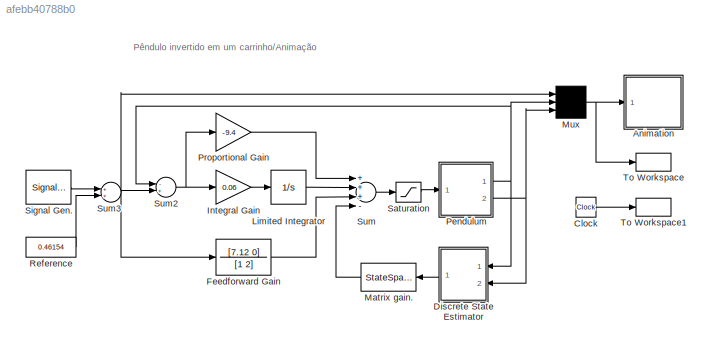
MODEL slx_afebb40788b0
KIND model
CONFIG AbsTol = 1e-6
CONFIG FixedStep = auto
CONFIG MaxStep = 0.02
CONFIG MinStep = auto
CONFIG RelTol = 1e-3
CONFIG SampleTimeConstraint = Unconstrained
CONFIG Solver = ode45
CONFIG SolverMode = SingleTasking
CONFIG SolverName = ode45
CONFIG StartTime = 0
CONFIG StopTime = inf
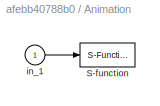
BLOCK [SubSystem] Animation
  Ports = [1]
  RequestExecContextInheritance = off
  Variant = off
BLOCK [S-Function] Animation/S-function
  DeleteFcn = pendan([],[],[],'DeleteBlock');
  EnableBusSupport = off
  FunctionName = pendan
  Parameters = RefBlock
  Ports = [1]
  SFunctionDeploymentMode = off
BLOCK [Inport] Animation/in_1
  IconDisplay = Port number
BLOCK [Clock] Clock
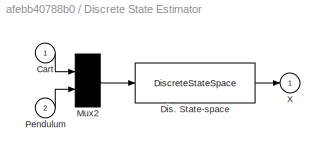
BLOCK [SubSystem] Discrete State Estimator
  Ports = [2, 1]
  RequestExecContextInheritance = off
  Variant = off
BLOCK [Inport] Discrete State Estimator/Cart
  IconDisplay = Port number
BLOCK [DiscreteStateSpace] Discrete State Estimator/Dis. State-space
  A = zeros(2)
  B = -eye(2)/Ts
  C = [0 0; 1 0; 0 0; 0 1]
  D = [1 0; 1/Ts 0; 0 1; 0 1/Ts]
  SampleTime = Ts
BLOCK [Mux] Discrete State Estimator/Mux2
  Inputs = 2
  Ports = [2, 1]
BLOCK [Inport] Discrete State Estimator/Pendulum
  IconDisplay = Port number
  Port = 2
BLOCK [Outport] Discrete State Estimator/X
  IconDisplay = Port number
  InitialOutput = 0
BLOCK [TransferFcn] Feedforward Gain
  Denominator = [1 2]
  Numerator = [7.12 0]
BLOCK [Gain] Integral Gain
  Gain = 0.06
BLOCK [Integrator] Limited Integrator
  LimitOutput = on
  LowerSaturationLimit = -5
  Ports = [1, 1]
  UpperSaturationLimit = 5
BLOCK [StateSpace] Matrix gain.
  A = []
  B = []
  C = []
  D = K
  Ports = [1, 1]
  X0 = 0
BLOCK [Mux] Mux
  Inputs = 3
  Ports = [3, 1]
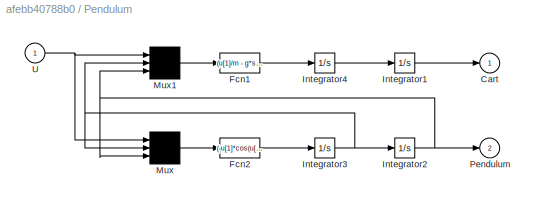
BLOCK [SubSystem] Pendulum
  Ports = [1, 2]
  RequestExecContextInheritance = off
  Variant = off
BLOCK [Outport] Pendulum/Cart
  IconDisplay = Port number
  InitialOutput = 0
BLOCK [Fcn] Pendulum/Fcn1
  Expr = (u[1]/m - g*sin(u[3])*cos(u[3]) + l*power(u[2],2)*sin(u[3]))/(Mcart/m + power(sin(u[3]),2))
BLOCK [Fcn] Pendulum/Fcn2
  Expr = (-u[1]*cos(u[3])/m + (Mcart+m)*g*sin(u[3])/m - l*power(u[2],2)*sin(u[3])*cos(u[3]))/(l*(Mcart/m + power(sin(u[3]),2)))
BLOCK [Integrator] Pendulum/Integrator1
  Ports = [1, 1]
BLOCK [Integrator] Pendulum/Integrator2
  Ports = [1, 1]
BLOCK [Integrator] Pendulum/Integrator3
  Ports = [1, 1]
BLOCK [Integrator] Pendulum/Integrator4
  Ports = [1, 1]
BLOCK [Mux] Pendulum/Mux
  Inputs = 3
  Ports = [3, 1]
BLOCK [Mux] Pendulum/Mux1
  Inputs = 3
  Ports = [3, 1]
BLOCK [Outport] Pendulum/Pendulum
  IconDisplay = Port number
  InitialOutput = 0
  Port = 2
BLOCK [Inport] Pendulum/U
  IconDisplay = Port number
BLOCK [Gain] Proportional Gain
  Gain = -9.4
BLOCK [Constant] Reference
  Value = 0.46154
BLOCK [Saturate] Saturation
  InputPortMap = u0
  LowerLimit = -10
  Ports = [1, 1]
  UpperLimit = 10
BLOCK [SignalGenerator] Signal Gen.
  Amplitude = 0.000000
  Frequency = 0.400000
  Ports = [0, 1]
  Units = rad/sec
  WaveForm = square
BLOCK [Sum] Sum
  Inputs = +++-
  Ports = [4, 1]
BLOCK [Sum] Sum2
  Inputs = -+
  Ports = [2, 1]
BLOCK [Sum] Sum3
  Ports = [2, 1]
BLOCK [ToWorkspace] To Workspace
  Ports = [1]
  SampleTime = 0.1
  VariableName = y
BLOCK [ToWorkspace] To Workspace1
  Ports = [1]
  SampleTime = 0.1
  VariableName = t
ANNOTATION (root): Pêndulo invertido em um carrinho/Animação
LINE Animation/in_1:1 -> Animation/S-function:1
LINE Clock:1 -> To Workspace1:1
LINE Discrete State Estimator/Cart:1 -> Discrete State Estimator/Mux2:1
LINE Discrete State Estimator/Dis. State-space:1 -> Discrete State Estimator/X:1
LINE Discrete State Estimator/Mux2:1 -> Discrete State Estimator/Dis. State-space:1
LINE Discrete State Estimator/Pendulum:1 -> Discrete State Estimator/Mux2:2
LINE Discrete State Estimator:1 -> Matrix gain.:1
LINE Feedforward Gain:1 -> Sum:3
LINE Integral Gain:1 -> Limited Integrator:1
LINE Limited Integrator:1 -> Sum:2
LINE Matrix gain.:1 -> Sum:4
NET Mux:1 -> Animation:1, To Workspace:1
LINE Pendulum/Fcn1:1 -> Pendulum/Integrator4:1
LINE Pendulum/Fcn2:1 -> Pendulum/Integrator3:1
LINE Pendulum/Integrator1:1 -> Pendulum/Cart:1
NET Pendulum/Integrator2:1 -> Pendulum/Mux1:3, Pendulum/Mux:3, Pendulum/Pendulum:1
NET Pendulum/Integrator3:1 -> Pendulum/Integrator2:1, Pendulum/Mux1:2, Pendulum/Mux:2
LINE Pendulum/Integrator4:1 -> Pendulum/Integrator1:1
LINE Pendulum/Mux1:1 -> Pendulum/Fcn1:1
LINE Pendulum/Mux:1 -> Pendulum/Fcn2:1
NET Pendulum/U:1 -> Pendulum/Mux1:1, Pendulum/Mux:1
NET Pendulum:1 -> Discrete State Estimator:1, Mux:2, Sum2:1
NET Pendulum:2 -> Discrete State Estimator:2, Mux:3
LINE Proportional Gain:1 -> Sum:1
LINE Reference:1 -> Sum3:2
LINE Saturation:1 -> Pendulum:1
LINE Signal Gen.:1 -> Sum3:1
NET Sum2:1 -> Integral Gain:1, Proportional Gain:1
NET Sum3:1 -> Feedforward Gain:1, Mux:1, Sum2:2
LINE Sum:1 -> Saturation:1
note: NET lines group one-source signal fan-out (src -> all destinations, sorted); 1:1 wires keep LINE
